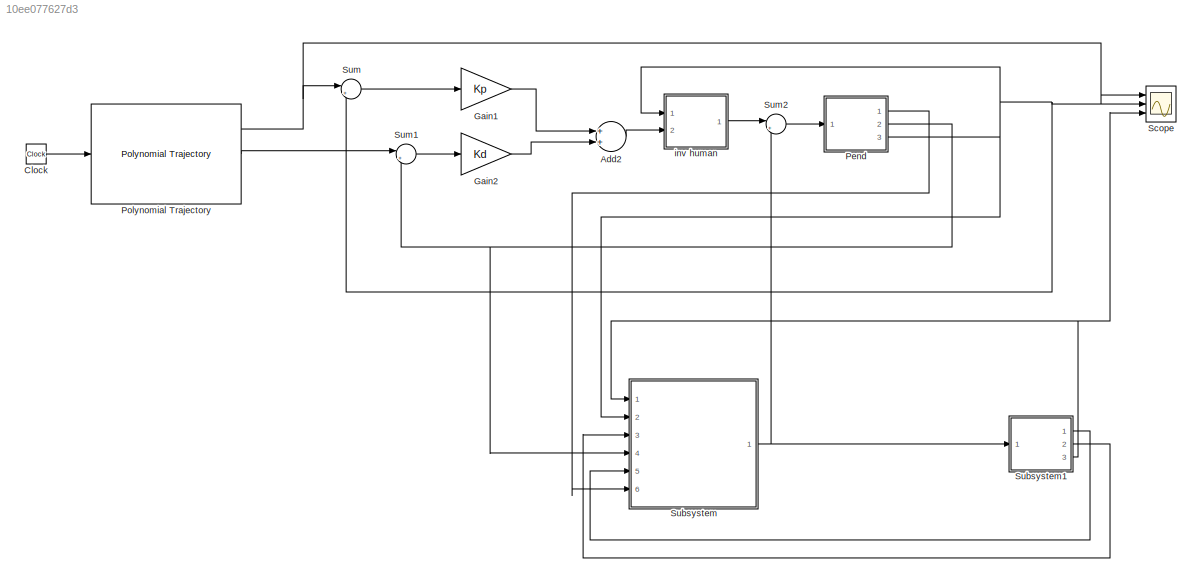
MODEL slx_10ee077627d3
KIND model
CONFIG AbsTol = auto
CONFIG EnableMultiTasking = off
CONFIG FixedStep = auto
CONFIG MaxStep = auto
CONFIG MinStep = auto
CONFIG RelTol = 1e-3
CONFIG SampleTimeConstraint = Unconstrained
CONFIG Solver = VariableStepAuto
CONFIG SolverName = VariableStepAuto
CONFIG StartTime = 0.0
CONFIG StopTime = 10.0
BLOCK [Sum] Add2
  InputSameDT = off
  OutDataTypeStr = Inherit: Inherit via internal rule
  Ports = [2, 1]
  SaturateOnIntegerOverflow = off
BLOCK [Clock] Clock
BLOCK [Gain] Gain1
  Gain = Kp
  OutDataTypeStr = Inherit: Inherit via internal rule
  ParamDataTypeStr = Inherit: Inherit via internal rule
  SaturateOnIntegerOverflow = off
BLOCK [Gain] Gain2
  Gain = Kd
  OutDataTypeStr = Inherit: Inherit via internal rule
  ParamDataTypeStr = Inherit: Inherit via internal rule
  SaturateOnIntegerOverflow = off
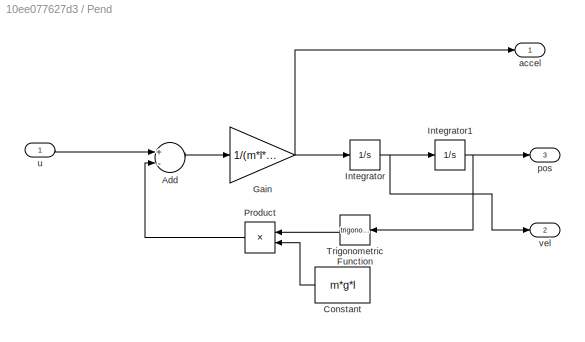
BLOCK [SubSystem] Pend
  Ports = [1, 3]
  RequestExecContextInheritance = off
BLOCK [Sum] Pend/Add
  InputSameDT = off
  Inputs = +-
  OutDataTypeStr = Inherit: Inherit via internal rule
  Ports = [2, 1]
  SaturateOnIntegerOverflow = off
BLOCK [Constant] Pend/Constant
  Value = m*g*l
BLOCK [Gain] Pend/Gain
  Gain = 1/(m*l*l)
  OutDataTypeStr = Inherit: Inherit via internal rule
  ParamDataTypeStr = Inherit: Inherit via internal rule
  SaturateOnIntegerOverflow = off
BLOCK [Integrator] Pend/Integrator
  Ports = [1, 1]
BLOCK [Integrator] Pend/Integrator1
  InitialCondition = -pi
  Ports = [1, 1]
BLOCK [Product] Pend/Product
  InputSameDT = off
  OutDataTypeStr = Inherit: Inherit via internal rule
  Ports = [2, 1]
  RndMeth = Floor
  SaturateOnIntegerOverflow = off
BLOCK [Trigonometry] Pend/Trigonometric Function
  Ports = [1, 1]
BLOCK [Outport] Pend/accel
  IconDisplay = Port number
BLOCK [Outport] Pend/pos
  IconDisplay = Port number
  Port = 3
BLOCK [Inport] Pend/u 
  IconDisplay = Port number
BLOCK [Outport] Pend/vel
  IconDisplay = Port number
  Port = 2
BLOCK [Reference] Polynomial Trajectory  REF=robotcorelib/Polynomial Trajectory
  Ports = [1, 3]
  SourceBlock = robotcorelib/Polynomial Trajectory
  SourceProductBaseCode = RO
  SourceProductName = Robotics System Toolbox
  SourceType = robotics.slcore.internal.block.PolyTrajSys
BLOCK [Scope] Scope
  Floating = off
  NumInputPorts = 3
  Ports = [3]
  ScopeSpecificationString = Simulink.scopes.TimeScopeBlockCfg('CurrentConfiguration', extmgr.ConfigurationSet(extmgr.Configuration('Core','General UI',true),extmgr.Configuration('Core','Source UI',true),extmgr.Configuration('Sources','WiredSimulink',true),extmgr.Configuration('Visuals','Time Domain',true,'SerializedDisplays',{struct('MinYLimReal','-0.24431','MaxYLimReal','-0.0284','YLabelReal','','MinYLimMag','0.00000','MaxY...<+1412ch>
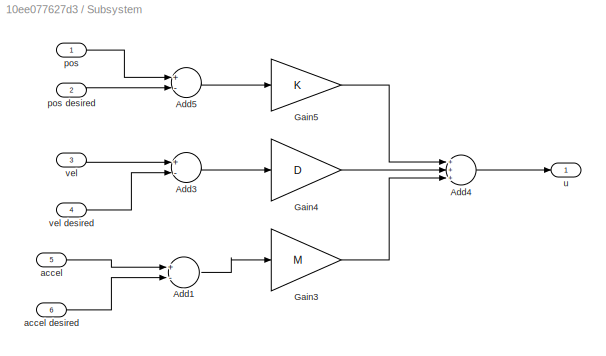
BLOCK [SubSystem] Subsystem
  Ports = [6, 1]
  RequestExecContextInheritance = off
BLOCK [Sum] Subsystem/Add1
  InputSameDT = off
  Inputs = +-
  OutDataTypeStr = Inherit: Inherit via internal rule
  Ports = [2, 1]
  SaturateOnIntegerOverflow = off
BLOCK [Sum] Subsystem/Add3
  InputSameDT = off
  Inputs = +-
  OutDataTypeStr = Inherit: Inherit via internal rule
  Ports = [2, 1]
  SaturateOnIntegerOverflow = off
BLOCK [Sum] Subsystem/Add4
  InputSameDT = off
  Inputs = +++
  OutDataTypeStr = Inherit: Inherit via internal rule
  Ports = [3, 1]
  SaturateOnIntegerOverflow = off
BLOCK [Sum] Subsystem/Add5
  InputSameDT = off
  Inputs = +-
  OutDataTypeStr = Inherit: Inherit via internal rule
  Ports = [2, 1]
  SaturateOnIntegerOverflow = off
BLOCK [Gain] Subsystem/Gain3
  Gain = M
  OutDataTypeStr = Inherit: Inherit via internal rule
  ParamDataTypeStr = Inherit: Inherit via internal rule
  SaturateOnIntegerOverflow = off
BLOCK [Gain] Subsystem/Gain4
  Gain = D
  OutDataTypeStr = Inherit: Inherit via internal rule
  ParamDataTypeStr = Inherit: Inherit via internal rule
  SaturateOnIntegerOverflow = off
BLOCK [Gain] Subsystem/Gain5
  Gain = K
  OutDataTypeStr = Inherit: Inherit via internal rule
  ParamDataTypeStr = Inherit: Inherit via internal rule
  SaturateOnIntegerOverflow = off
BLOCK [Inport] Subsystem/accel
  IconDisplay = Port number
  Port = 5
BLOCK [Inport] Subsystem/accel desired
  IconDisplay = Port number
  Port = 6
BLOCK [Inport] Subsystem/pos
  IconDisplay = Port number
BLOCK [Inport] Subsystem/pos desired
  IconDisplay = Port number
  Port = 2
BLOCK [Outport] Subsystem/u 
  IconDisplay = Port number
BLOCK [Inport] Subsystem/vel
  IconDisplay = Port number
  Port = 3
BLOCK [Inport] Subsystem/vel desired
  IconDisplay = Port number
  Port = 4
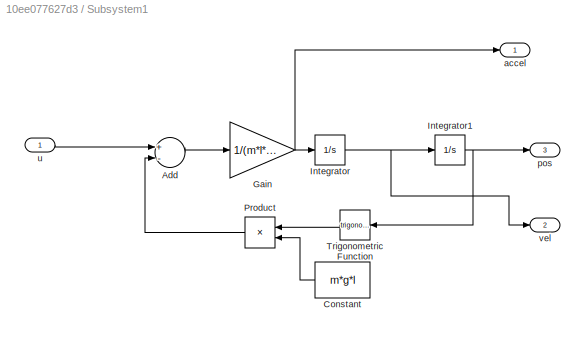
BLOCK [SubSystem] Subsystem1
  Ports = [1, 3]
  RequestExecContextInheritance = off
BLOCK [Sum] Subsystem1/Add
  InputSameDT = off
  Inputs = +-
  OutDataTypeStr = Inherit: Inherit via internal rule
  Ports = [2, 1]
  SaturateOnIntegerOverflow = off
BLOCK [Constant] Subsystem1/Constant
  Value = m*g*l
BLOCK [Gain] Subsystem1/Gain
  Gain = 1/(m*l*l)
  OutDataTypeStr = Inherit: Inherit via internal rule
  ParamDataTypeStr = Inherit: Inherit via internal rule
  SaturateOnIntegerOverflow = off
BLOCK [Integrator] Subsystem1/Integrator
  Ports = [1, 1]
BLOCK [Integrator] Subsystem1/Integrator1
  InitialCondition = -pi
  Ports = [1, 1]
BLOCK [Product] Subsystem1/Product
  InputSameDT = off
  OutDataTypeStr = Inherit: Inherit via internal rule
  Ports = [2, 1]
  RndMeth = Floor
  SaturateOnIntegerOverflow = off
BLOCK [Trigonometry] Subsystem1/Trigonometric Function
  Ports = [1, 1]
BLOCK [Outport] Subsystem1/accel
  IconDisplay = Port number
BLOCK [Outport] Subsystem1/pos
  IconDisplay = Port number
  Port = 3
BLOCK [Inport] Subsystem1/u 
  IconDisplay = Port number
BLOCK [Outport] Subsystem1/vel
  IconDisplay = Port number
  Port = 2
BLOCK [Sum] Sum
  IconShape = round
  InputSameDT = off
  Inputs = |+-
  OutDataTypeStr = Inherit: Inherit via internal rule
  Ports = [2, 1]
  SaturateOnIntegerOverflow = off
BLOCK [Sum] Sum1
  IconShape = round
  InputSameDT = off
  Inputs = |+-
  OutDataTypeStr = Inherit: Inherit via internal rule
  Ports = [2, 1]
  SaturateOnIntegerOverflow = off
BLOCK [Sum] Sum2
  IconShape = round
  InputSameDT = off
  Inputs = |+-
  OutDataTypeStr = Inherit: Inherit via internal rule
  Ports = [2, 1]
  SaturateOnIntegerOverflow = off
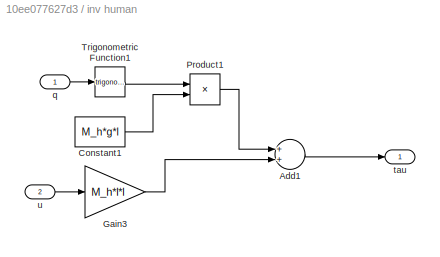
BLOCK [SubSystem] inv human
  Ports = [2, 1]
  RequestExecContextInheritance = off
BLOCK [Sum] inv human/Add1
  InputSameDT = off
  OutDataTypeStr = Inherit: Inherit via internal rule
  Ports = [2, 1]
  SaturateOnIntegerOverflow = off
BLOCK [Constant] inv human/Constant1
  Value = M_h*g*l
BLOCK [Gain] inv human/Gain3
  Gain = M_h*l*l
  OutDataTypeStr = Inherit: Inherit via internal rule
  ParamDataTypeStr = Inherit: Inherit via internal rule
  SaturateOnIntegerOverflow = off
BLOCK [Product] inv human/Product1
  InputSameDT = off
  OutDataTypeStr = Inherit: Inherit via internal rule
  Ports = [2, 1]
  RndMeth = Floor
  SaturateOnIntegerOverflow = off
BLOCK [Trigonometry] inv human/Trigonometric Function1
  Ports = [1, 1]
BLOCK [Inport] inv human/q
  IconDisplay = Port number
BLOCK [Outport] inv human/tau 
  IconDisplay = Port number
BLOCK [Inport] inv human/u 
  IconDisplay = Port number
  Port = 2
LINE Add2:1 -> inv human:2
LINE Clock:1 -> Polynomial Trajectory:1
LINE Gain1:1 -> Add2:1
LINE Gain2:1 -> Add2:2
LINE Pend/Add:1 -> Pend/Gain:1
LINE Pend/Constant:1 -> Pend/Product:2
NET Pend/Gain:1 -> Pend/Integrator:1, Pend/accel:1
NET Pend/Integrator1:1 -> Pend/Trigonometric Function:1, Pend/pos:1
NET Pend/Integrator:1 -> Pend/Integrator1:1, Pend/vel:1
LINE Pend/Product:1 -> Pend/Add:2
LINE Pend/Trigonometric Function:1 -> Pend/Product:1
LINE Pend/u :1 -> Pend/Add:1
LINE Pend:1 -> Subsystem:6
NET Pend:2 -> Subsystem:4, Sum1:2
NET Pend:3 -> Scope:2, Subsystem:2, Sum:2, inv human:1
NET Polynomial Trajectory:1 -> Scope:1, Sum:1
LINE Polynomial Trajectory:2 -> Sum1:1
LINE Subsystem/Add1:1 -> Subsystem/Gain3:1
LINE Subsystem/Add3:1 -> Subsystem/Gain4:1
LINE Subsystem/Add4:1 -> Subsystem/u :1
LINE Subsystem/Add5:1 -> Subsystem/Gain5:1
LINE Subsystem/Gain3:1 -> Subsystem/Add4:3
LINE Subsystem/Gain4:1 -> Subsystem/Add4:2
LINE Subsystem/Gain5:1 -> Subsystem/Add4:1
LINE Subsystem/accel desired:1 -> Subsystem/Add1:2
LINE Subsystem/accel:1 -> Subsystem/Add1:1
LINE Subsystem/pos desired:1 -> Subsystem/Add5:2
LINE Subsystem/pos:1 -> Subsystem/Add5:1
LINE Subsystem/vel desired:1 -> Subsystem/Add3:2
LINE Subsystem/vel:1 -> Subsystem/Add3:1
LINE Subsystem1/Add:1 -> Subsystem1/Gain:1
LINE Subsystem1/Constant:1 -> Subsystem1/Product:2
NET Subsystem1/Gain:1 -> Subsystem1/Integrator:1, Subsystem1/accel:1
NET Subsystem1/Integrator1:1 -> Subsystem1/Trigonometric Function:1, Subsystem1/pos:1
NET Subsystem1/Integrator:1 -> Subsystem1/Integrator1:1, Subsystem1/vel:1
LINE Subsystem1/Product:1 -> Subsystem1/Add:2
LINE Subsystem1/Trigonometric Function:1 -> Subsystem1/Product:1
LINE Subsystem1/u :1 -> Subsystem1/Add:1
LINE Subsystem1:1 -> Subsystem:5
LINE Subsystem1:2 -> Subsystem:3
NET Subsystem1:3 -> Scope:3, Subsystem:1
NET Subsystem:1 -> Subsystem1:1, Sum2:2
LINE Sum1:1 -> Gain2:1
LINE Sum2:1 -> Pend:1
LINE Sum:1 -> Gain1:1
LINE inv human/Add1:1 -> inv human/tau :1
LINE inv human/Constant1:1 -> inv human/Product1:2
LINE inv human/Gain3:1 -> inv human/Add1:2
LINE inv human/Product1:1 -> inv human/Add1:1
LINE inv human/Trigonometric Function1:1 -> inv human/Product1:1
LINE inv human/q:1 -> inv human/Trigonometric Function1:1
LINE inv human/u :1 -> inv human/Gain3:1
LINE inv human:1 -> Sum2:1
note: NET lines group one-source signal fan-out (src -> all destinations, sorted); 1:1 wires keep LINE
